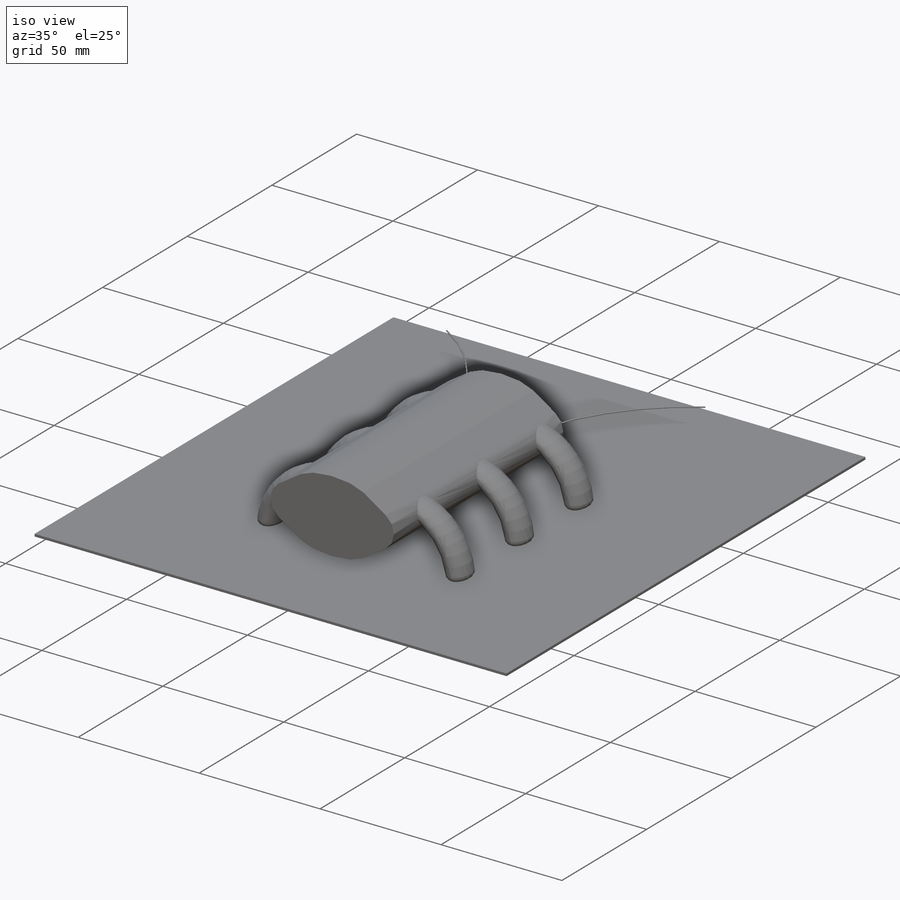
[diagram: iso view]
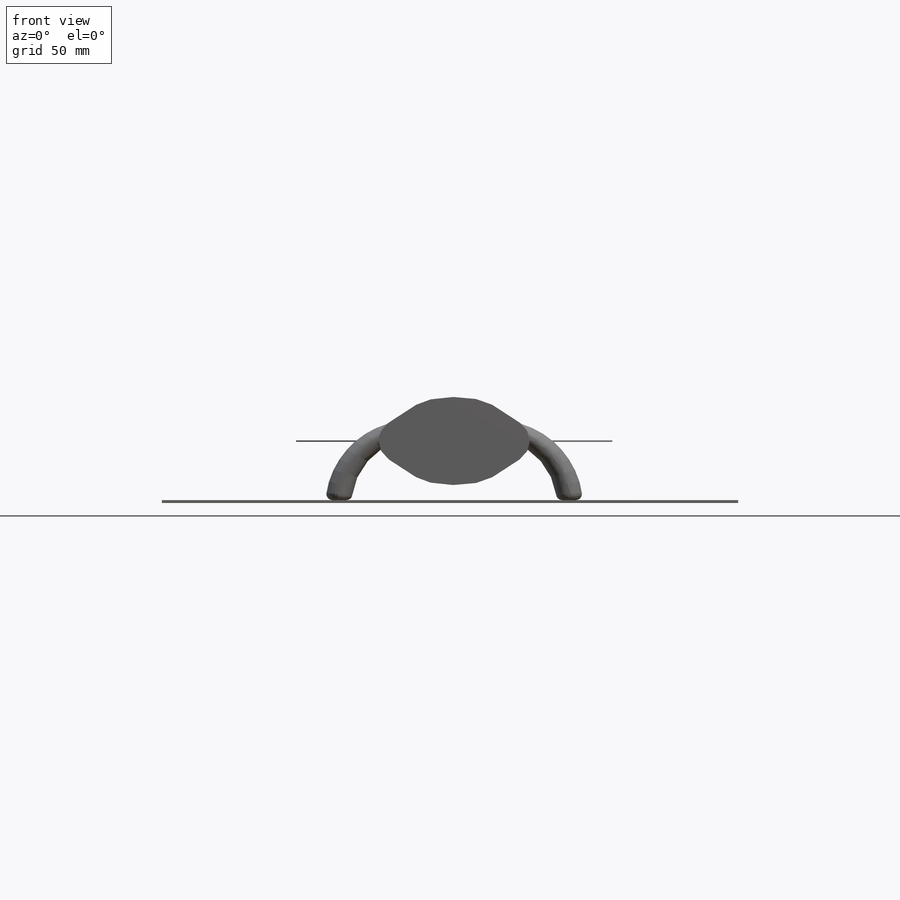
[diagram: front view]
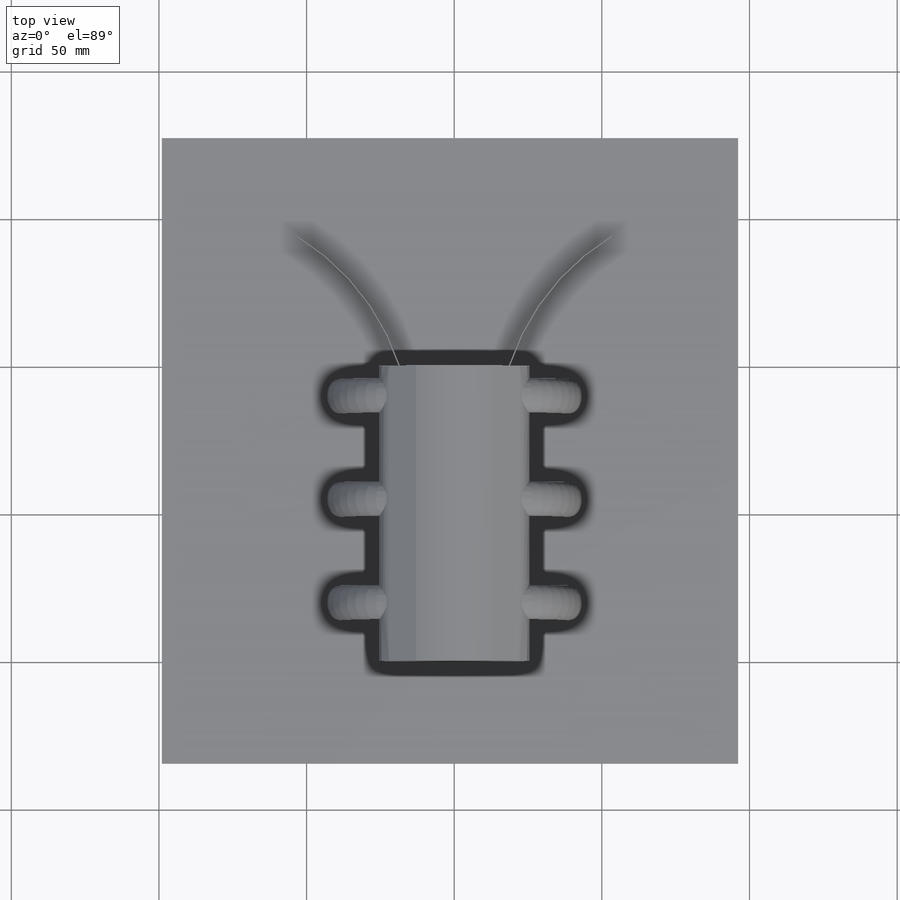
[diagram: top view]
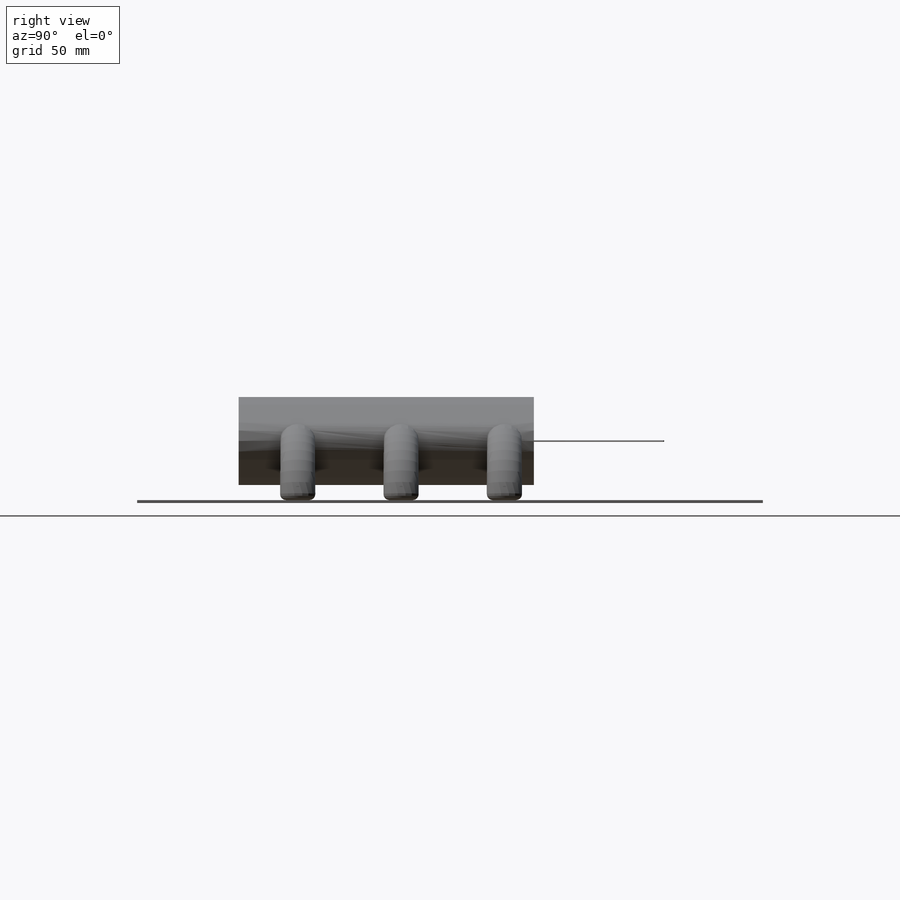
[diagram: right view]
SOLIDWORKS PART (.sldprt)
format: sldprt  version: not decoded by parser v0  size: 615,424 bytes
history: native  units: mm
features: sketch x7, extrude x2, plane x2, mirror x2, material x1, fillet x1, pattern_linear x1, sweep x1 (+13 scaffold rows collapsed)
feature tree (30):
  scaffold x13  (default folders/planes/origin — collapsed)
  material  "Material <not specified>"
  sketch  "Sketch1"  dims[D2=15.0mm D4=15.0mm D1=10.0mm D3=18.0mm]
  extrude  "Extrude1"  Depth=100mm
  sketch  "Sketch2"  dims[D1=80.0mm]
  plane  "Plane1"  Offset=20mm
  sketch  "Sketch3"  dims[D1=6.0mm]
  plane  "Plane2"
  sketch  "Sketch4"
  fillet  "Fillet1"  Radius=2mm
  mirror  "Mirror1"
  pattern_linear  "LPattern1"  Count1=3 Count2=1 Spacing1=35mm Spacing2=50mm
  sketch  "Sketch5"  dims[D1=0.5mm]
  sketch  "Sketch6"
  sweep  "Sweep1"
  mirror  "Mirror2"
  sketch  "Sketch7"
  extrude  "Extrude2"  Depth=1mm
decode coverage: 8 of 14 modeling features carry decoded parameters
note: suppression state not decoded; provenance and decode notes live in map.json
